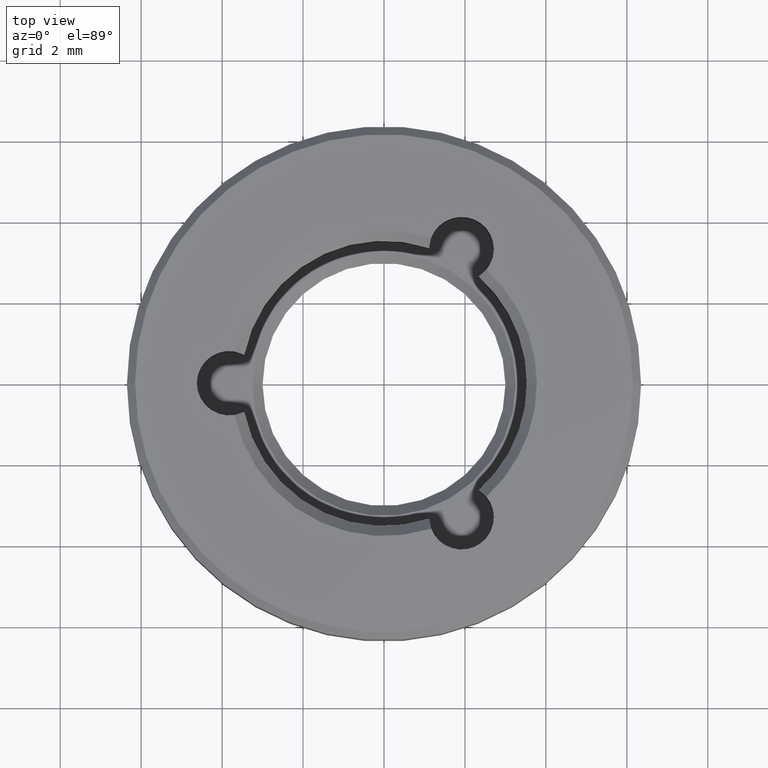
[diagram: clean part render]
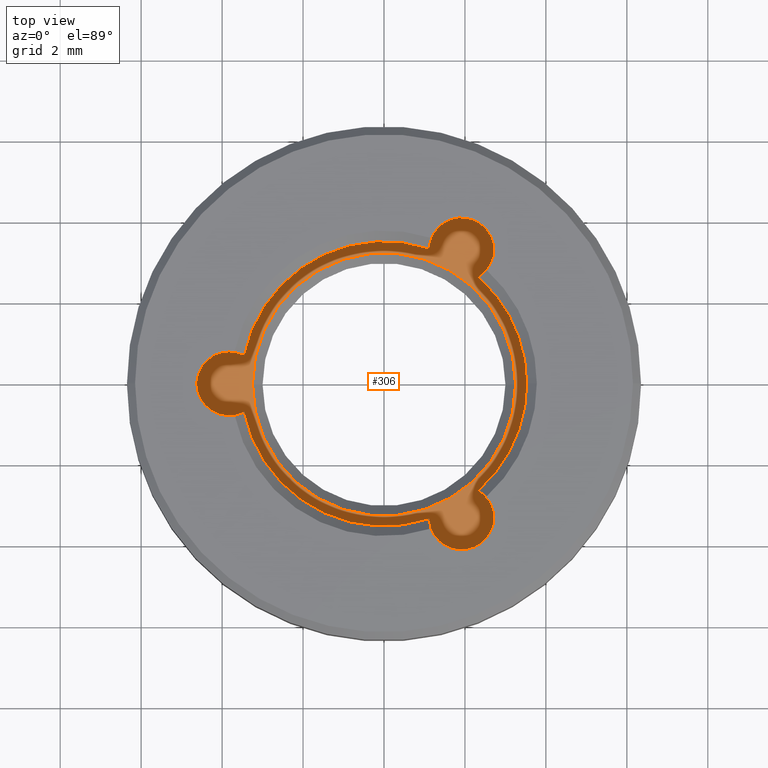
[diagram: same view with one face highlighted and labeled with its STEP entity id]
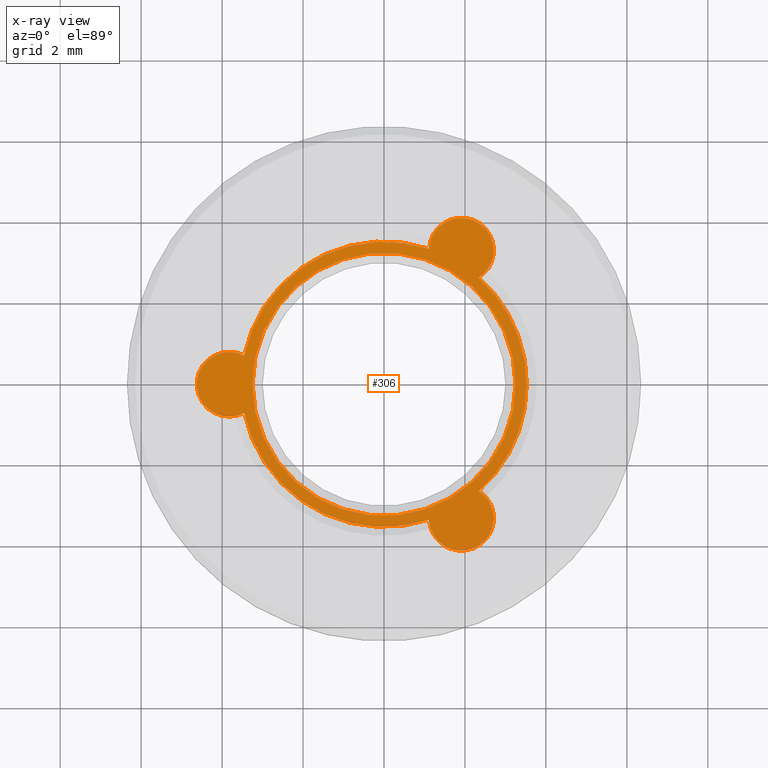
[diagram: x-ray of the same camera — body ghosted, the highlighted face saturated]
A machine part, top view. The second image highlights one B-rep face of the part: STEP entity #306.
The next image is the same camera in x-ray: the body ghosted, the highlighted face saturated — about 0% of this face is hidden behind the body in this view.
In plain terms, the highlighted planar face has unit normal (0, 0, 1).
Its self-contained STEP definition (entity closure, byte-faithful):
#9 = CARTESIAN_POINT ( 'NONE',  ( 1.912500000000016076, -3.312547169475469122, 0.6000000000000003109 ) ) ;
#31 = DIRECTION ( 'NONE',  ( 1.000000000000000000, 0.000000000000000000, 0.000000000000000000 ) ) ;
#33 = ORIENTED_EDGE ( 'NONE', *, *, #537, .T. ) ;
#35 = DIRECTION ( 'NONE',  ( 1.000000000000000000, 0.000000000000000000, 0.000000000000000000 ) ) ;
#40 = DIRECTION ( 'NONE',  ( -0.000000000000000000, -0.000000000000000000, -1.000000000000000000 ) ) ;
#62 = CARTESIAN_POINT ( 'NONE',  ( 0.000000000000000000, 0.000000000000000000, 0.6000000000000000888 ) ) ;
#86 = VERTEX_POINT ( 'NONE', #801 ) ;
#87 = DIRECTION ( 'NONE',  ( -0.000000000000000000, -0.000000000000000000, -1.000000000000000000 ) ) ;
#89 = ORIENTED_EDGE ( 'NONE', *, *, #580, .F. ) ;
#92 = AXIS2_PLACEMENT_3D ( 'NONE', #718, #784, #432 ) ;
#93 = AXIS2_PLACEMENT_3D ( 'NONE', #404, #907, #126 ) ;
#98 = ORIENTED_EDGE ( 'NONE', *, *, #439, .T. ) ;
#102 = CIRCLE ( 'NONE', #540, 3.524999999999999911 ) ;
#105 = ORIENTED_EDGE ( 'NONE', *, *, #184, .F. ) ;
#119 = AXIS2_PLACEMENT_3D ( 'NONE', #364, #602, #470 ) ;
#123 = CARTESIAN_POINT ( 'NONE',  ( -3.453104575163398859, -0.7083034610854348490, 0.6000000000000003109 ) ) ;
#126 = DIRECTION ( 'NONE',  ( 1.000000000000000000, 0.000000000000000000, 0.000000000000000000 ) ) ;
#129 = CARTESIAN_POINT ( 'NONE',  ( -3.453104575163398859, 0.7083034610854340718, 0.6000000000000003109 ) ) ;
#139 = DIRECTION ( 'NONE',  ( 1.000000000000000000, 0.000000000000000000, -0.000000000000000000 ) ) ;
#147 = DIRECTION ( 'NONE',  ( 1.000000000000000000, 0.000000000000000000, 0.000000000000000000 ) ) ;
#155 = EDGE_LOOP ( 'NONE', ( #242, #33 ) ) ;
#158 = EDGE_CURVE ( 'NONE', #291, #864, #102, .T. ) ;
#163 = DIRECTION ( 'NONE',  ( -0.000000000000000000, -0.000000000000000000, -1.000000000000000000 ) ) ;
#166 = EDGE_CURVE ( 'NONE', #514, #864, #206, .T. ) ;
#171 = AXIS2_PLACEMENT_3D ( 'NONE', #422, #216, #495 ) ;
#184 = EDGE_CURVE ( 'NONE', #773, #529, #496, .T. ) ;
#187 = DIRECTION ( 'NONE',  ( 0.000000000000000000, 0.000000000000000000, 1.000000000000000000 ) ) ;
#206 = CIRCLE ( 'NONE', #171, 0.8000000000000010436 ) ;
#214 = EDGE_CURVE ( 'NONE', #583, #664, #360, .T. ) ;
#215 = CARTESIAN_POINT ( 'NONE',  ( 3.250000000000003109, 0.000000000000000000, 0.6000000000000000888 ) ) ;
#216 = DIRECTION ( 'NONE',  ( -0.000000000000000000, -0.000000000000000000, -1.000000000000000000 ) ) ;
#229 = AXIS2_PLACEMENT_3D ( 'NONE', #804, #40, #35 ) ;
#232 = EDGE_CURVE ( 'NONE', #370, #86, #601, .T. ) ;
#235 = CARTESIAN_POINT ( 'NONE',  ( 3.524999999999999911, 0.000000000000000000, 0.6000000000000000888 ) ) ;
#242 = ORIENTED_EDGE ( 'NONE', *, *, #214, .T. ) ;
#250 = VERTEX_POINT ( 'NONE', #371 ) ;
#263 = CARTESIAN_POINT ( 'NONE',  ( 0.000000000000000000, 0.000000000000000000, 0.6000000000000000888 ) ) ;
#266 = CIRCLE ( 'NONE', #435, 0.8000000000000010436 ) ;
#288 = CARTESIAN_POINT ( 'NONE',  ( 0.000000000000000000, 0.000000000000000000, 0.6000000000000000888 ) ) ;
#291 = VERTEX_POINT ( 'NONE', #235 ) ;
#306 = ADVANCED_FACE ( 'NONE', ( #876, #814 ), #451, .T. ) ;
#334 = AXIS2_PLACEMENT_3D ( 'NONE', #684, #466, #139 ) ;
#341 = CARTESIAN_POINT ( 'NONE',  ( 2.339961078470103040, 2.636324553473079035, 0.5999999999999998668 ) ) ;
#348 = AXIS2_PLACEMENT_3D ( 'NONE', #729, #507, #31 ) ;
#360 = CIRCLE ( 'NONE', #229, 3.250000000000003109 ) ;
#364 = CARTESIAN_POINT ( 'NONE',  ( -3.824999999999999734, -4.684274006738625136E-16, 0.6000000000000003109 ) ) ;
#370 = VERTEX_POINT ( 'NONE', #123 ) ;
#371 = CARTESIAN_POINT ( 'NONE',  ( 1.113143496693238976, 3.344628014558502560, 0.5999999999999998668 ) ) ;
#373 = ORIENTED_EDGE ( 'NONE', *, *, #850, .F. ) ;
#391 = EDGE_CURVE ( 'NONE', #250, #890, #776, .T. ) ;
#403 = EDGE_LOOP ( 'NONE', ( #98, #817, #700, #373, #563, #823, #895, #89, #105 ) ) ;
#404 = CARTESIAN_POINT ( 'NONE',  ( 1.912499999999968781, 3.312547169475495767, 0.5999999999999998668 ) ) ;
#422 = CARTESIAN_POINT ( 'NONE',  ( 1.912499999999968781, 3.312547169475495767, 0.5999999999999998668 ) ) ;
#429 = CARTESIAN_POINT ( 'NONE',  ( 2.712499999999969713, 3.312547169475495767, 0.5999999999999998668 ) ) ;
#432 = DIRECTION ( 'NONE',  ( 1.000000000000000000, 0.000000000000000000, 0.000000000000000000 ) ) ;
#435 = AXIS2_PLACEMENT_3D ( 'NONE', #9, #87, #564 ) ;
#439 = EDGE_CURVE ( 'NONE', #773, #291, #760, .T. ) ;
#451 = PLANE ( 'NONE',  #334 ) ;
#466 = DIRECTION ( 'NONE',  ( 0.000000000000000000, 0.000000000000000000, 1.000000000000000000 ) ) ;
#470 = DIRECTION ( 'NONE',  ( 1.000000000000000000, 0.000000000000000000, 0.000000000000000000 ) ) ;
#495 = DIRECTION ( 'NONE',  ( 1.000000000000000000, 0.000000000000000000, 0.000000000000000000 ) ) ;
#496 = CIRCLE ( 'NONE', #792, 0.8000000000000010436 ) ;
#507 = DIRECTION ( 'NONE',  ( 0.000000000000000000, 0.000000000000000000, 1.000000000000000000 ) ) ;
#511 = CIRCLE ( 'NONE', #119, 0.8000000000000008216 ) ;
#514 = VERTEX_POINT ( 'NONE', #429 ) ;
#529 = VERTEX_POINT ( 'NONE', #632 ) ;
#537 = EDGE_CURVE ( 'NONE', #664, #583, #585, .T. ) ;
#540 = AXIS2_PLACEMENT_3D ( 'NONE', #288, #789, #147 ) ;
#541 = DIRECTION ( 'NONE',  ( 0.000000000000000000, 0.000000000000000000, 1.000000000000000000 ) ) ;
#563 = ORIENTED_EDGE ( 'NONE', *, *, #391, .T. ) ;
#564 = DIRECTION ( 'NONE',  ( 1.000000000000000000, 0.000000000000000000, 0.000000000000000000 ) ) ;
#580 = EDGE_CURVE ( 'NONE', #529, #86, #266, .T. ) ;
#583 = VERTEX_POINT ( 'NONE', #215 ) ;
#585 = CIRCLE ( 'NONE', #92, 3.250000000000003109 ) ;
#601 = CIRCLE ( 'NONE', #348, 3.524999999999999911 ) ;
#602 = DIRECTION ( 'NONE',  ( -0.000000000000000000, -0.000000000000000000, -1.000000000000000000 ) ) ;
#604 = DIRECTION ( 'NONE',  ( 1.000000000000000000, 0.000000000000000000, 0.000000000000000000 ) ) ;
#632 = CARTESIAN_POINT ( 'NONE',  ( 2.712500000000016787, -3.312547169475469122, 0.6000000000000003109 ) ) ;
#652 = CARTESIAN_POINT ( 'NONE',  ( -3.250000000000003109, 3.980102097228901683E-16, 0.6000000000000000888 ) ) ;
#664 = VERTEX_POINT ( 'NONE', #652 ) ;
#684 = CARTESIAN_POINT ( 'NONE',  ( 0.000000000000000000, 0.000000000000000000, 0.6000000000000000888 ) ) ;
#700 = ORIENTED_EDGE ( 'NONE', *, *, #166, .F. ) ;
#707 = AXIS2_PLACEMENT_3D ( 'NONE', #62, #187, #892 ) ;
#718 = CARTESIAN_POINT ( 'NONE',  ( 0.000000000000000000, 0.000000000000000000, 0.6000000000000000888 ) ) ;
#720 = EDGE_CURVE ( 'NONE', #370, #890, #511, .T. ) ;
#729 = CARTESIAN_POINT ( 'NONE',  ( 0.000000000000000000, 0.000000000000000000, 0.6000000000000000888 ) ) ;
#741 = CIRCLE ( 'NONE', #93, 0.8000000000000010436 ) ;
#747 = CARTESIAN_POINT ( 'NONE',  ( 2.339961078470140343, -2.636324553473046617, 0.6000000000000003109 ) ) ;
#748 = CARTESIAN_POINT ( 'NONE',  ( 1.912500000000016076, -3.312547169475469122, 0.6000000000000003109 ) ) ;
#760 = CIRCLE ( 'NONE', #777, 3.524999999999999911 ) ;
#773 = VERTEX_POINT ( 'NONE', #747 ) ;
#776 = CIRCLE ( 'NONE', #707, 3.524999999999999911 ) ;
#777 = AXIS2_PLACEMENT_3D ( 'NONE', #263, #541, #837 ) ;
#784 = DIRECTION ( 'NONE',  ( -0.000000000000000000, -0.000000000000000000, -1.000000000000000000 ) ) ;
#789 = DIRECTION ( 'NONE',  ( 0.000000000000000000, 0.000000000000000000, 1.000000000000000000 ) ) ;
#792 = AXIS2_PLACEMENT_3D ( 'NONE', #748, #163, #604 ) ;
#801 = CARTESIAN_POINT ( 'NONE',  ( 1.113143496693286716, -3.344628014558486129, 0.6000000000000003109 ) ) ;
#804 = CARTESIAN_POINT ( 'NONE',  ( 0.000000000000000000, 0.000000000000000000, 0.6000000000000000888 ) ) ;
#814 = FACE_OUTER_BOUND ( 'NONE', #403, .T. ) ;
#817 = ORIENTED_EDGE ( 'NONE', *, *, #158, .T. ) ;
#823 = ORIENTED_EDGE ( 'NONE', *, *, #720, .F. ) ;
#837 = DIRECTION ( 'NONE',  ( 1.000000000000000000, 0.000000000000000000, 0.000000000000000000 ) ) ;
#850 = EDGE_CURVE ( 'NONE', #250, #514, #741, .T. ) ;
#864 = VERTEX_POINT ( 'NONE', #341 ) ;
#876 = FACE_BOUND ( 'NONE', #155, .T. ) ;
#890 = VERTEX_POINT ( 'NONE', #129 ) ;
#892 = DIRECTION ( 'NONE',  ( 1.000000000000000000, 0.000000000000000000, 0.000000000000000000 ) ) ;
#895 = ORIENTED_EDGE ( 'NONE', *, *, #232, .T. ) ;
#907 = DIRECTION ( 'NONE',  ( -0.000000000000000000, -0.000000000000000000, -1.000000000000000000 ) ) ;